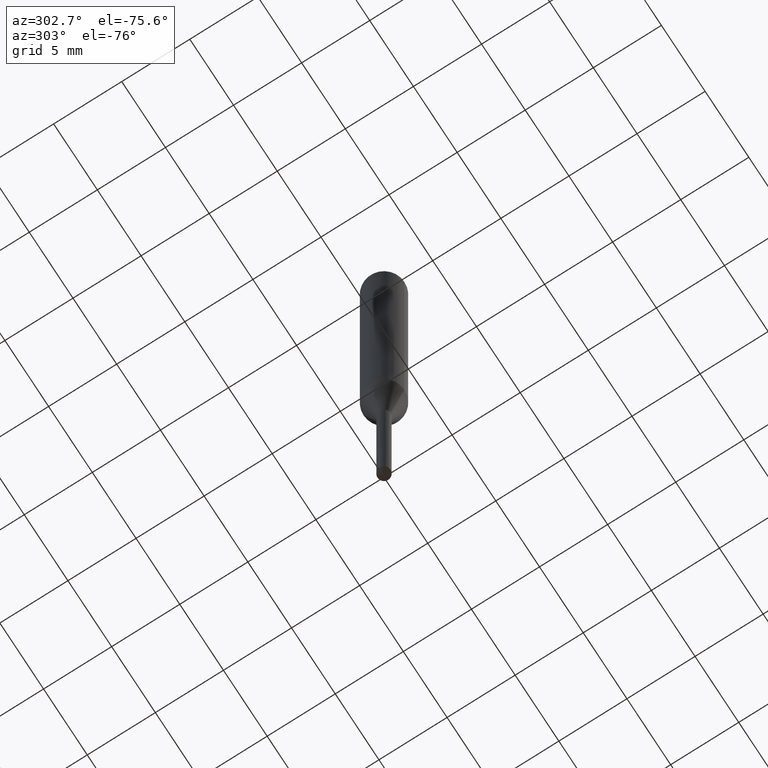
[diagram: clean part render]
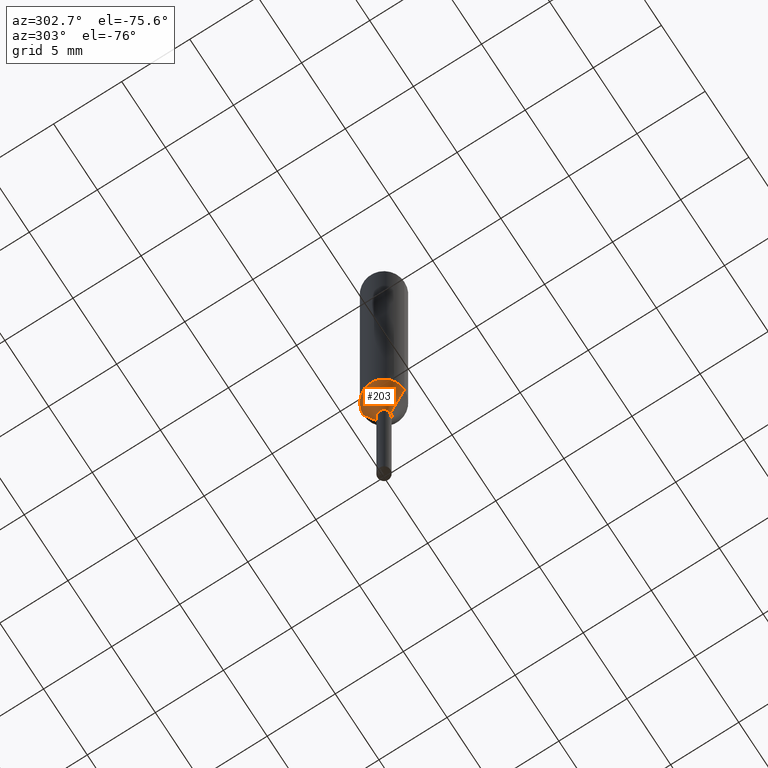
[diagram: same view with one face highlighted and labeled with its STEP entity id]
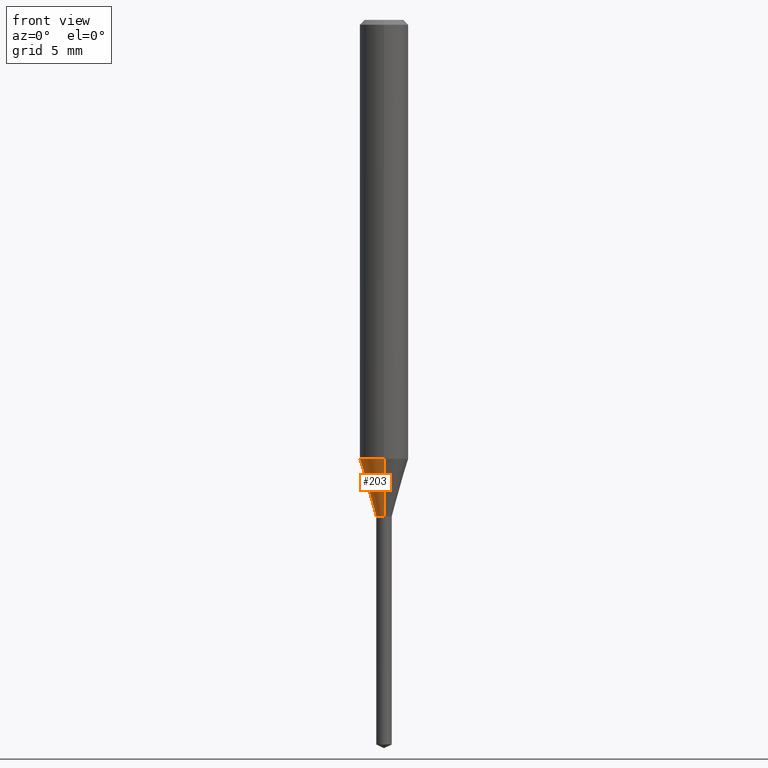
[diagram: same view with one face highlighted and labeled with its STEP entity id]
A machine part, auxiliary view. The second image highlights one B-rep face of the part: STEP entity #203.
A second angle (front view) of the same face is appended — the face is thin or edge-on in the first view.
In plain terms, the highlighted conical surface has half-angle 16.002 deg.
Its self-contained STEP definition (entity closure, byte-faithful):
#107=EDGE_CURVE('',#161,#135,#243,.T.);
#115=EDGE_CURVE('',#135,#137,#252,.T.);
#135=VERTEX_POINT('',#276);
#137=VERTEX_POINT('',#278);
#153=VERTEX_POINT('',#296);
#161=VERTEX_POINT('',#304);
#169=EDGE_CURVE('',#153,#137,#313,.T.);
#187=EDGE_CURVE('',#153,#161,#333,.T.);
#203=ADVANCED_FACE('',(#352),#353,.T.);
#243=CIRCLE('',#392,1.5);
#252=LINE('',#405,#406);
#276=CARTESIAN_POINT('',(0.0,1.5,-27.125));
#278=CARTESIAN_POINT('',(0.0,0.475,-30.6991339745962));
#296=CARTESIAN_POINT('',(5.81688018065629E-017,-0.475,-30.6991339745962));
#304=CARTESIAN_POINT('',(1.83690953073357E-016,-1.5,-27.125));
#313=CIRCLE('',#484,0.475);
#333=LINE('',#507,#508);
#352=FACE_OUTER_BOUND('',#528,.T.);
#353=CONICAL_SURFACE('',#529,0.9875,0.27928721316379);
#392=AXIS2_PLACEMENT_3D('',#551,#552,#553);
#405=CARTESIAN_POINT('',(-1.2092987743996E-016,0.9875,-28.9120669872981));
#406=VECTOR('',#566,1.0);
#484=AXIS2_PLACEMENT_3D('',#645,#646,#647);
#507=CARTESIAN_POINT('',(1.2092987743996E-016,-0.9875,-28.9120669872981));
#508=VECTOR('',#667,1.0);
#528=EDGE_LOOP('',(#695,#696,#697,#698));
#529=AXIS2_PLACEMENT_3D('',#699,#700,#701);
#551=CARTESIAN_POINT('',(0.0,0.0,-27.125));
#552=DIRECTION('',(0.0,0.0,-1.0));
#553=DIRECTION('',(0.0,1.0,0.0));
#566=DIRECTION('',(3.37587908014451E-017,-0.275670550753501,-0.961252176823159));
#645=CARTESIAN_POINT('',(0.0,0.0,-30.6991339745962));
#646=DIRECTION('',(0.0,0.0,-1.0));
#647=DIRECTION('',(0.0,1.0,0.0));
#667=DIRECTION('',(3.37587908014451E-017,-0.275670550753501,0.961252176823159));
#695=ORIENTED_EDGE('',*,*,#115,.T.);
#696=ORIENTED_EDGE('',*,*,#169,.F.);
#697=ORIENTED_EDGE('',*,*,#187,.T.);
#698=ORIENTED_EDGE('',*,*,#107,.T.);
#699=CARTESIAN_POINT('',(0.0,0.0,-28.9120669872981));
#700=DIRECTION('',(-0.0,-0.0,1.0));
#701=DIRECTION('',(0.0,1.0,0.0));